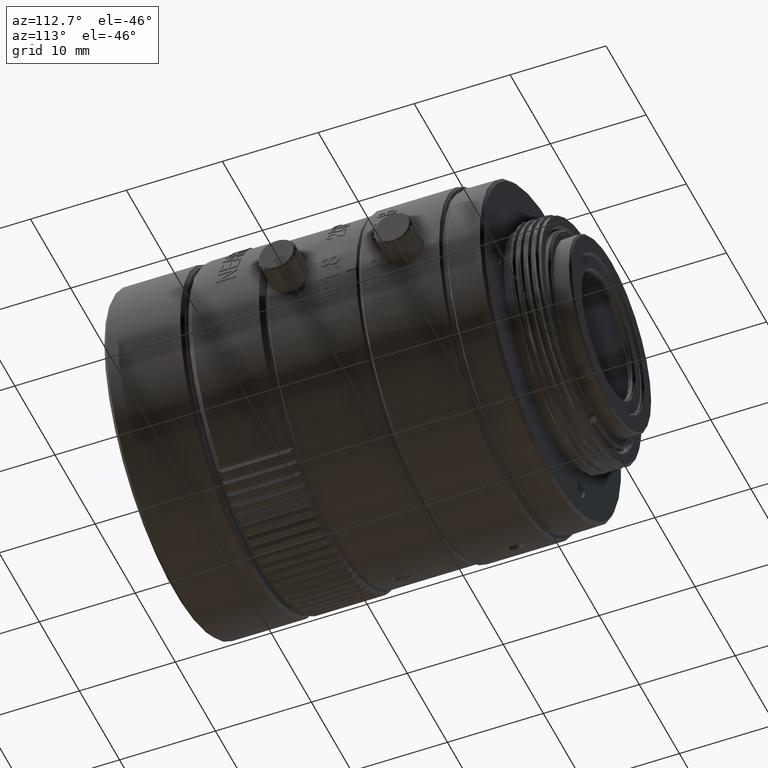
[diagram: clean part render]
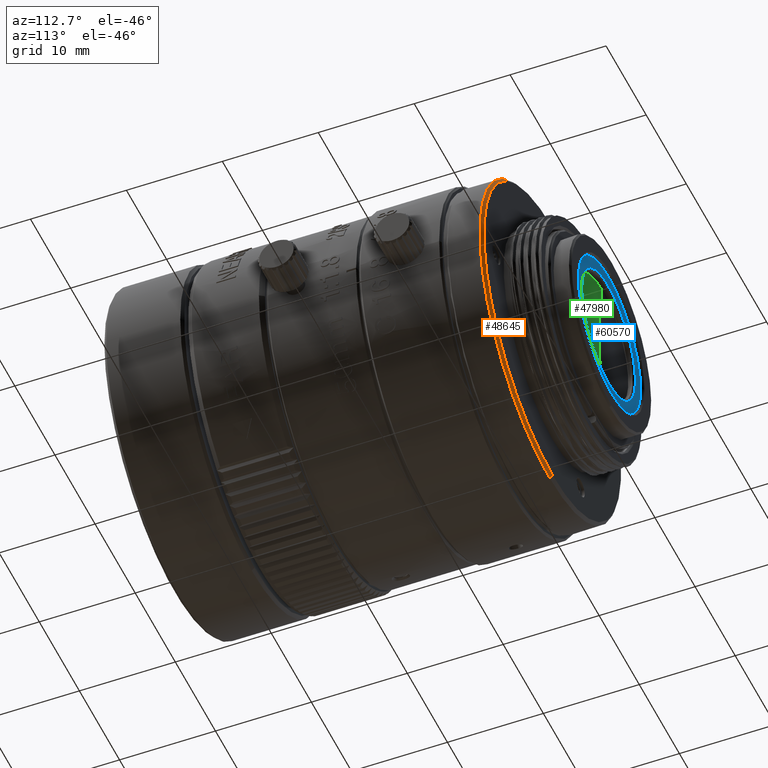
[diagram: same view with three faces highlighted in distinct colors, each labeled with its STEP entity id]
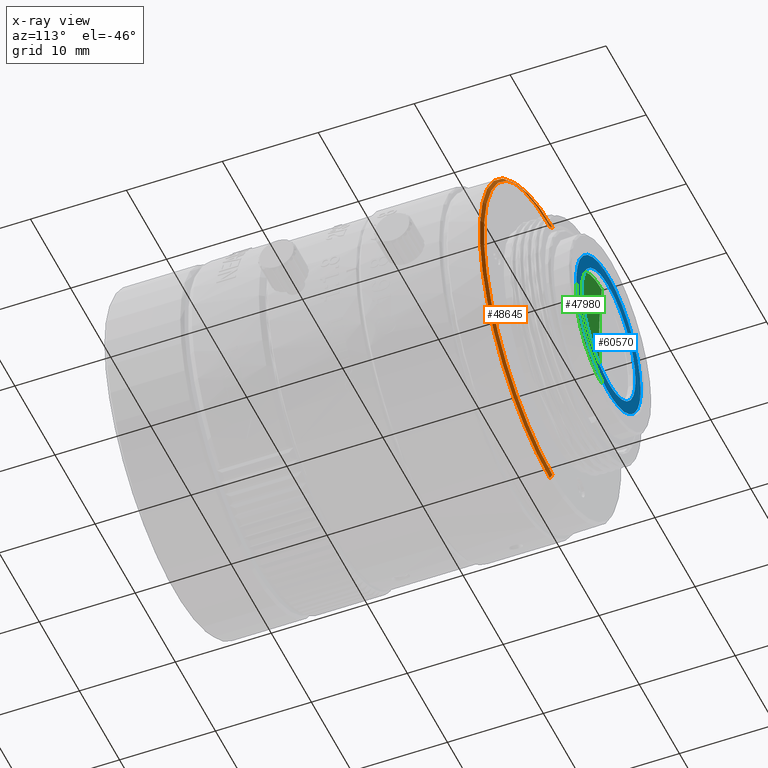
[diagram: x-ray of the same camera — body ghosted, the three highlighted faces saturated]
A machine part, auxiliary view with three faces highlighted in distinct colors.
The next image is the same camera in x-ray (body ghosted, the three faces saturated) — at least one of them is partly hidden behind the body in this view.
Their STEP definitions:

[orange] entity #48645 — the highlighted conical surface has half-angle 45 deg.
#5202 = CIRCLE ( 'NONE', #62166, 17.09999737999697800 ) ;
#12732 = CARTESIAN_POINT ( 'NONE',  ( 17.50001204309999991, 22.16401061507275827, -17.50001170252000193 ) ) ;
#18905 = DIRECTION ( 'NONE',  ( -0.000000000000000000, 1.000000000000000000, -0.000000000000000000 ) ) ;
#23302 = ORIENTED_EDGE ( 'NONE', *, *, #41626, .F. ) ;
#24326 = CONICAL_SURFACE ( 'NONE', #68754, 17.39999866686051178, 0.7853980867749428274 ) ;
#26413 = EDGE_CURVE ( 'NONE', #57573, #60284, #62472, .T. ) ;
#28420 = FACE_OUTER_BOUND ( 'NONE', #45892, .T. ) ;
#29965 = DIRECTION ( 'NONE',  ( 0.000000000000000000, 0.000000000000000000, -1.000000000000000000 ) ) ;
#30177 = DIRECTION ( 'NONE',  ( 0.000000000000000000, 0.000000000000000000, -1.000000000000000000 ) ) ;
#31244 = CARTESIAN_POINT ( 'NONE',  ( 17.50001204309999991, 22.46401194790999867, -17.50001170252000193 ) ) ;
#35367 = CARTESIAN_POINT ( 'NONE',  ( 17.50001204309999991, 22.16401061507275827, -34.90001036938051726 ) ) ;
#37747 = VECTOR ( 'NONE', #65630, 1000.000000000000000 ) ;
#38350 = ORIENTED_EDGE ( 'NONE', *, *, #26413, .F. ) ;
#38506 = ORIENTED_EDGE ( 'NONE', *, *, #69877, .T. ) ;
#39837 = CARTESIAN_POINT ( 'NONE',  ( 17.50001204309999991, 22.16401061507276182, -0.1000130356594991499 ) ) ;
#40191 = DIRECTION ( 'NONE',  ( 0.000000000000000000, 0.000000000000000000, -1.000000000000000000 ) ) ;
#40651 = CARTESIAN_POINT ( 'NONE',  ( 17.50001204309999991, 22.16401061507276182, -17.50001170252000193 ) ) ;
#40696 = VECTOR ( 'NONE', #46412, 1000.000000000000000 ) ;
#41626 = EDGE_CURVE ( 'NONE', #50954, #57573, #5202, .T. ) ;
#42293 = DIRECTION ( 'NONE',  ( -0.000000000000000000, 1.000000000000000000, -0.000000000000000000 ) ) ;
#42597 = CARTESIAN_POINT ( 'NONE',  ( 17.50001204310000347, 22.46401194790999867, -0.4000143225230262667 ) ) ;
#44717 = CIRCLE ( 'NONE', #62951, 17.39999866686050467 ) ;
#45892 = EDGE_LOOP ( 'NONE', ( #23302, #38506, #66600, #38350 ) ) ;
#46412 = DIRECTION ( 'NONE',  ( 0.000000000000000000, -0.7071068353668387152, -0.7071067270062522114 ) ) ;
#47853 = LINE ( 'NONE', #48536, #37747 ) ;
#48536 = CARTESIAN_POINT ( 'NONE',  ( 17.50001204310000347, 22.16401061507275827, -0.1000130356594922110 ) ) ;
#48645 = ADVANCED_FACE ( 'NONE', ( #28420 ), #24326, .T. ) ;
#50954 = VERTEX_POINT ( 'NONE', #42597 ) ;
#57573 = VERTEX_POINT ( 'NONE', #57687 ) ;
#57687 = CARTESIAN_POINT ( 'NONE',  ( 17.50001204309999991, 22.46401194790999867, -34.60000908251698348 ) ) ;
#60284 = VERTEX_POINT ( 'NONE', #68263 ) ;
#61212 = DIRECTION ( 'NONE',  ( 0.000000000000000000, -1.000000000000000000, 0.000000000000000000 ) ) ;
#62166 = AXIS2_PLACEMENT_3D ( 'NONE', #31244, #42293, #30177 ) ;
#62472 = LINE ( 'NONE', #35367, #40696 ) ;
#62825 = VERTEX_POINT ( 'NONE', #39837 ) ;
#62951 = AXIS2_PLACEMENT_3D ( 'NONE', #40651, #18905, #29965 ) ;
#65630 = DIRECTION ( 'NONE',  ( 8.659559898837680077E-17, -0.7071068353668387152, 0.7071067270062522114 ) ) ;
#66600 = ORIENTED_EDGE ( 'NONE', *, *, #70063, .T. ) ;
#68263 = CARTESIAN_POINT ( 'NONE',  ( 17.50001204310000347, 22.16401061507276182, -34.90001036938051016 ) ) ;
#68754 = AXIS2_PLACEMENT_3D ( 'NONE', #12732, #61212, #40191 ) ;
#69877 = EDGE_CURVE ( 'NONE', #50954, #62825, #47853, .T. ) ;
#70063 = EDGE_CURVE ( 'NONE', #62825, #60284, #44717, .T. ) ;

[blue] entity #60570 — the highlighted planar face has unit normal (-0, 1, 0).
#190 = CARTESIAN_POINT ( 'NONE',  ( 9.500012043096996095, 28.29968554691893701, -17.50001170252000193 ) ) ;
#235 = CARTESIAN_POINT ( 'NONE',  ( 10.95135239076032008, 28.29968554691999927, -18.93265816278426072 ) ) ;
#258 = CARTESIAN_POINT ( 'NONE',  ( 23.71960537655916212, 28.29968554692000637, -19.99148072807137666 ) ) ;
#537 = CARTESIAN_POINT ( 'NONE',  ( 10.03800702501116504, 28.29968554692000637, -14.61565725176351194 ) ) ;
#605 = CARTESIAN_POINT ( 'NONE',  ( 18.01083008238495253, 28.29968554691999927, -24.18603371835057914 ) ) ;
#822 = FACE_BOUND ( 'NONE', #28932, .T. ) ;
#879 = CARTESIAN_POINT ( 'NONE',  ( 19.21066634323316791, 28.29968554692000282, -9.680730420689835469 ) ) ;
#925 = CARTESIAN_POINT ( 'NONE',  ( 11.13924025462781131, 28.29968554691999927, -19.60992578294462163 ) ) ;
#1236 = CARTESIAN_POINT ( 'NONE',  ( 20.38436649385637978, 28.29968554692000282, -10.03800668443118482 ) ) ;
#1274 = CARTESIAN_POINT ( 'NONE',  ( 22.10613542586107982, 28.29968554691999927, -24.04132299981192133 ) ) ;
#1305 = CARTESIAN_POINT ( 'NONE',  ( 24.16269865593596933, 28.29968554691999927, -18.31655430142930641 ) ) ;
#1591 = CARTESIAN_POINT ( 'NONE',  ( 24.15901251043411335, 28.29968554692000282, -13.06580345499675033 ) ) ;
#1624 = CARTESIAN_POINT ( 'NONE',  ( 14.76722136411491171, 28.29968554692000637, -25.01927854571010101 ) ) ;
#1937 = CARTESIAN_POINT ( 'NONE',  ( 21.47601267464541408, 28.29968554691999572, -10.55564790650373652 ) ) ;
#1975 = CARTESIAN_POINT ( 'NONE',  ( 20.66346007786472327, 28.29968554692000637, -24.84853497688941815 ) ) ;
#2150 = CARTESIAN_POINT ( 'NONE',  ( 25.50001204310300906, 28.29968554691893701, -17.50001170252000193 ) ) ;
#2337 = CARTESIAN_POINT ( 'NONE',  ( 24.96201706118817043, 28.29968554692000282, -20.38436615327690049 ) ) ;
#2686 = CARTESIAN_POINT ( 'NONE',  ( 16.46643932131522803, 28.29968554691999927, -25.43464566788433245 ) ) ;
#3024 = CARTESIAN_POINT ( 'NONE',  ( 9.677556174562282010, 28.29968554691999927, -19.17831380355629989 ) ) ;
#3373 = CARTESIAN_POINT ( 'NONE',  ( 12.23345587289686698, 28.29968554691999927, -23.54711149314919894 ) ) ;
#3413 = CARTESIAN_POINT ( 'NONE',  ( 21.35766165957640794, 28.29968554691999572, -12.02167591160080207 ) ) ;
#3656 = ORIENTED_EDGE ( 'NONE', *, *, #69375, .T. ) ;
#4181 = CARTESIAN_POINT ( 'NONE',  ( 11.92309273220705279, 28.29968554692000282, -13.78636654552031260 ) ) ;
#4484 = CARTESIAN_POINT ( 'NONE',  ( 18.10982056198350065, 28.29968554692000282, -9.516677970906588513 ) ) ;
#4540 = CARTESIAN_POINT ( 'NONE',  ( 10.79999206007965640, 28.29968554691999572, -17.70473774759142316 ) ) ;
#4837 = CARTESIAN_POINT ( 'NONE',  ( 12.72551978885402590, 28.29968554691999572, -11.07829347920637098 ) ) ;
#4884 = CARTESIAN_POINT ( 'NONE',  ( 16.06736558283775551, 28.29968554691999927, -10.95135205017923674 ) ) ;
#5175 = CARTESIAN_POINT ( 'NONE',  ( 9.905077295543984306, 28.29968554691999572, -14.98066990745505223 ) ) ;
#5226 = CARTESIAN_POINT ( 'NONE',  ( 10.91652091822596837, 28.29968554691999927, -16.25569540523510526 ) ) ;
#5523 = CARTESIAN_POINT ( 'NONE',  ( 13.06580379557859573, 28.29968554691999216, -10.84101123518504828 ) ) ;
#5571 = CARTESIAN_POINT ( 'NONE',  ( 10.88126484887260403, 28.29968554691999927, -18.54254603301050963 ) ) ;
#5874 = CARTESIAN_POINT ( 'NONE',  ( 14.52512125341521276, 28.29968554691999572, -10.07363696847337131 ) ) ;
#5923 = CARTESIAN_POINT ( 'NONE',  ( 14.02305559682625002, 28.29968554691999927, -23.23169989421939619 ) ) ;
#5945 = CARTESIAN_POINT ( 'NONE',  ( 24.01005826085918926, 28.29968554691999216, -19.09074934003902868 ) ) ;
#6216 = CARTESIAN_POINT ( 'NONE',  ( 20.41336885927152878, 28.29968554691999572, -10.04927632396084114 ) ) ;
#6260 = CARTESIAN_POINT ( 'NONE',  ( 11.35368796694591609, 28.29968554692000993, -20.17660814945352499 ) ) ;
#6284 = CARTESIAN_POINT ( 'NONE',  ( 19.76316482395663243, 28.29968554692000282, -23.80646101794142311 ) ) ;
#6566 = CARTESIAN_POINT ( 'NONE',  ( 24.54751427961886989, 28.29968554691999927, -13.69716026234384643 ) ) ;
#6600 = CARTESIAN_POINT ( 'NONE',  ( 16.16475634488175572, 28.29968554691999927, -25.38785211723485702 ) ) ;
#6613 = CARTESIAN_POINT ( 'NONE',  ( 16.68364481227958152, 28.29968554691999216, -24.16273078195981938 ) ) ;
#6634 = CARTESIAN_POINT ( 'NONE',  ( 24.14527518977470066, 28.29968554691999927, -16.63443171094523620 ) ) ;
#6922 = CARTESIAN_POINT ( 'NONE',  ( 20.32380449457051341, 28.29968554692000282, -10.01487513166413201 ) ) ;
#6956 = CARTESIAN_POINT ( 'NONE',  ( 22.96174352202623936, 28.29968554691999927, -23.35201499166199213 ) ) ;
#7311 = CARTESIAN_POINT ( 'NONE',  ( 24.95074742165864023, 28.29968554691999927, -20.41336851869223423 ) ) ;
#7325 = CARTESIAN_POINT ( 'NONE',  ( 13.78636688609893213, 28.29968554692000637, -23.07693101341221009 ) ) ;
#7346 = CARTESIAN_POINT ( 'NONE',  ( 23.07693135399198781, 28.29968554691999927, -21.21365685952148183 ) ) ;
#7602 = CARTESIAN_POINT ( 'NONE',  ( 17.50001204309999991, 28.29968554695795291, -10.80000792488171335 ) ) ;
#7661 = CARTESIAN_POINT ( 'NONE',  ( 21.65156918842615141, 28.29968554691999927, -24.34383028193771636 ) ) ;
#7699 = CARTESIAN_POINT ( 'NONE',  ( 23.31593718593061482, 28.29968554692000993, -14.17014260796332614 ) ) ;
#8019 = CARTESIAN_POINT ( 'NONE',  ( 21.30286348328533919, 28.29968554691999927, -24.54751393903102752 ) ) ;
#8051 = CARTESIAN_POINT ( 'NONE',  ( 20.68494632917168730, 28.29968554691999927, -11.59774817703377359 ) ) ;
#8370 = CARTESIAN_POINT ( 'NONE',  ( 9.841145124867820115, 28.29968554691999927, -19.83677413723408733 ) ) ;
#8710 = CARTESIAN_POINT ( 'NONE',  ( 13.52401141155832498, 28.29968554691999927, -24.44437549853946834 ) ) ;
#9015 = EDGE_CURVE ( 'NONE', #18322, #63334, #14129, .T. ) ;
#9105 = CARTESIAN_POINT ( 'NONE',  ( 23.75041243599541474, 28.29968554691999216, -15.08636588349962437 ) ) ;
#9825 = CARTESIAN_POINT ( 'NONE',  ( 17.74449516679787564, 28.29968554692000282, -9.499995494977659050 ) ) ;
#9876 = CARTESIAN_POINT ( 'NONE',  ( 11.34563036068012210, 28.29968554691999927, -14.85060305058599717 ) ) ;
#9976 = ORIENTED_EDGE ( 'NONE', *, *, #9015, .T. ) ;
#10178 = CARTESIAN_POINT ( 'NONE',  ( 9.597049589175695061, 28.29968554692000637, -16.25510198789509886 ) ) ;
#10227 = CARTESIAN_POINT ( 'NONE',  ( 14.82341559616272519, 28.29968554692000637, -11.35368762636770867 ) ) ;
#10574 = CARTESIAN_POINT ( 'NONE',  ( 16.30754556975634983, 28.29968554692000637, -10.90692576569956884 ) ) ;
#10880 = CARTESIAN_POINT ( 'NONE',  ( 14.33656400833362632, 28.29968554691998861, -10.15148842814974373 ) ) ;
#10925 = CARTESIAN_POINT ( 'NONE',  ( 10.89394075810427509, 28.29968554691998861, -18.61827575762995224 ) ) ;
#11229 = CARTESIAN_POINT ( 'NONE',  ( 12.89388866033160141, 28.29968554692000282, -10.95870040523502631 ) ) ;
#11274 = CARTESIAN_POINT ( 'NONE',  ( 13.64236242662445342, 28.29968554692000282, -22.97834749344036709 ) ) ;
#11297 = CARTESIAN_POINT ( 'NONE',  ( 18.36570702324246795, 28.29968554692000637, -24.14525357966675045 ) ) ;
#11626 = CARTESIAN_POINT ( 'NONE',  ( 15.90927440559611661, 28.29968554691999927, -24.01005792028554353 ) ) ;
#11649 = CARTESIAN_POINT ( 'NONE',  ( 21.91079208561831138, 28.29968554691998861, -22.56441533876040495 ) ) ;
#11844 = VERTEX_POINT ( 'NONE', #13336 ) ;
#11922 = CARTESIAN_POINT ( 'NONE',  ( 20.69597660219260149, 28.29968554691999927, -10.16113705447315496 ) ) ;
#11954 = CARTESIAN_POINT ( 'NONE',  ( 25.40297449702431010, 28.29968554691999927, -18.74492141715444049 ) ) ;
#11985 = CARTESIAN_POINT ( 'NONE',  ( 24.04867169544059280, 28.29968554691998861, -16.06736524225690133 ) ) ;
#12213 = PLANE ( 'NONE',  #16886 ) ;
#12317 = CARTESIAN_POINT ( 'NONE',  ( 16.22744823744982057, 28.29968554691999927, -24.07810699190621762 ) ) ;
#12626 = CARTESIAN_POINT ( 'NONE',  ( 19.58801041100958074, 28.29968554691999927, -9.769618737173029643 ) ) ;
#12661 = CARTESIAN_POINT ( 'NONE',  ( 25.37741084241217848, 28.29968554691999572, -18.89553484466343392 ) ) ;
#12693 = CARTESIAN_POINT ( 'NONE',  ( 23.65439372552284070, 28.29968554691999927, -20.14942035444854085 ) ) ;
#12935 = DIRECTION ( 'NONE',  ( 0.000000000000000000, -0.000000000000000000, 1.000000000000000000 ) ) ;
#12991 = CARTESIAN_POINT ( 'NONE',  ( 22.33967114562050327, 28.29968554691999572, -11.10603703957214350 ) ) ;
#13026 = CARTESIAN_POINT ( 'NONE',  ( 15.78935774298050099, 28.29968554692000282, -25.31929298435431974 ) ) ;
#13336 = CARTESIAN_POINT ( 'NONE',  ( 17.50001204309999636, 28.29968554695795291, -24.20001548015399706 ) ) ;
#13378 = CARTESIAN_POINT ( 'NONE',  ( 24.34019619333705009, 28.29968554691999572, -21.64932105405641138 ) ) ;
#13738 = CARTESIAN_POINT ( 'NONE',  ( 11.64800875395981627, 28.29968554692000282, -22.96174318144715443 ) ) ;
#14129 = B_SPLINE_CURVE_WITH_KNOTS ( 'NONE', 3,
 ( #190, #37621, #36920, #21927, #10178, #32629, #20883, #54375, #15556, #32287, #5175, #16581, #70395, #537, #37970, #32988, #54029, #42644, #43671, #26913, #15214, #65075, #27256, #60067, #38318, #4837, #11229, #48670, #5523, #49024, #16253, #54723, #10880, #59723, #53338, #5874, #59020, #47983, #64388, #37273, #27613, #31935, #22260, #64042, #58667, #9825, #4484, #53681, #26220, #26574, #48331, #70052, #879, #12626, #22616, #39723, #6922, #1236, #6216, #11922, #66476, #1937, #56130, #61473, #29378, #12991, #50782, #66825, #44369, #33336, #40085, #60771, #1591, #67184, #6566, #38673, #55775, #17632, #28316, #22968, #65766, #45426, #18334, #23312, #16934, #49722, #23672, #50435, #55078, #61839 ),
 .UNSPECIFIED., .F., .F.,
 ( 4, 1, 1, 1, 2, 2, 1, 1, 1, 2, 2, 1, 1, 2, 2, 2, 1, 1, 2, 2, 1, 1, 1, 2, 2, 1, 1, 1, 2, 2, 2, 1, 1, 1, 2, 2, 1, 1, 1, 2, 2, 1, 1, 2, 2, 2, 1, 1, 2, 2, 1, 1, 1, 2, 2, 1, 1, 1, 2, 2, 4 ),
 ( 0.000000000000000000, 0.03125000000000442701, 0.04687500000000641848, 0.05468750000000742462, 0.05859375000000771605, 0.06250000000000800748, 0.09375000000000757727, 0.1093750000000073552, 0.1171875000000071471, 0.1210937500000070777, 0.1250000000000069944, 0.1562500000000071887, 0.1718750000000073552, 0.1796875000000075218, 0.1875000000000076883, 0.2500000000000087708, 0.2812500000000092704, 0.2968750000000094924, 0.3046875000000096589, 0.3125000000000097700, 0.3437500000000098255, 0.3593750000000097145, 0.3671875000000097145, 0.3710937500000096034, 0.3750000000000094924, 0.4062500000000088818, 0.4218750000000086042, 0.4296875000000083267, 0.4335937500000081601, 0.4375000000000079381, 0.5000000000000111022, 0.5312500000000124345, 0.5468750000000128786, 0.5546875000000131006, 0.5585937500000129896, 0.5625000000000128786, 0.5937500000000093259, 0.6093750000000073275, 0.6171875000000065503, 0.6210937500000063283, 0.6250000000000059952, 0.6562500000000064393, 0.6718750000000066613, 0.6796875000000066613, 0.6875000000000066613, 0.7500000000000045519, 0.7812500000000034417, 0.7968750000000026645, 0.8046875000000023315, 0.8125000000000019984, 0.8437500000000006661, 0.8593749999999998890, 0.8671874999999995559, 0.8710937499999994449, 0.8749999999999992228, 0.9062499999999990008, 0.9218749999999987788, 0.9296874999999986677, 0.9335937499999987788, 0.9374999999999988898, 1.000000000000000000 ),
 .UNSPECIFIED. ) ;
#14428 = CARTESIAN_POINT ( 'NONE',  ( 9.500012043096996095, 28.29968554691893701, -17.50001170252000193 ) ) ;
#15156 = CARTESIAN_POINT ( 'NONE',  ( 9.500012043096994319, 28.29968554691999216, -17.98950872213764640 ) ) ;
#15214 = CARTESIAN_POINT ( 'NONE',  ( 10.76629927499777573, 28.29968554691999572, -13.18008130986683568 ) ) ;
#15260 = CARTESIAN_POINT ( 'NONE',  ( 10.94870760415373212, 28.29968554691999572, -16.09441197999275275 ) ) ;
#15397 = EDGE_CURVE ( 'NONE', #57109, #11844, #39911, .T. ) ;
#15556 = CARTESIAN_POINT ( 'NONE',  ( 9.680730761269764173, 28.29968554691999572, -15.78935740238632945 ) ) ;
#15608 = CARTESIAN_POINT ( 'NONE',  ( 12.59897490661502850, 28.29968554691999572, -12.92578636289852057 ) ) ;
#15957 = CARTESIAN_POINT ( 'NONE',  ( 10.93244396629851600, 28.29968554692000282, -16.17417744430389348 ) ) ;
#16253 = CARTESIAN_POINT ( 'NONE',  ( 13.69716060291087878, 28.29968554691999927, -10.45250946600706321 ) ) ;
#16301 = CARTESIAN_POINT ( 'NONE',  ( 15.75136024080292252, 28.29968554691999927, -11.02579014234597210 ) ) ;
#16581 = CARTESIAN_POINT ( 'NONE',  ( 9.980745199913034327, 28.29968554691999572, -14.76722102352406196 ) ) ;
#16886 = AXIS2_PLACEMENT_3D ( 'NONE', #50726, #62132, #12935 ) ;
#16934 = CARTESIAN_POINT ( 'NONE',  ( 25.34188429744443738, 28.29968554692000282, -15.91694195238643772 ) ) ;
#16981 = CARTESIAN_POINT ( 'NONE',  ( 11.86052901381339986, 28.29968554692000282, -21.11796110936641213 ) ) ;
#17004 = CARTESIAN_POINT ( 'NONE',  ( 17.70482569850878463, 28.29968554692000637, -24.20001548018505488 ) ) ;
#17324 = CARTESIAN_POINT ( 'NONE',  ( 24.98514861395464592, 28.29968554691999216, -20.32380415399149598 ) ) ;
#17360 = CARTESIAN_POINT ( 'NONE',  ( 24.05131648204570638, 28.29968554691999216, -18.90561142504671110 ) ) ;
#17632 = CARTESIAN_POINT ( 'NONE',  ( 24.88757936844733010, 28.29968554691999216, -14.42999047006238378 ) ) ;
#17669 = CARTESIAN_POINT ( 'NONE',  ( 14.61565759234694006, 28.29968554692001703, -24.96201672060983512 ) ) ;
#17680 = CARTESIAN_POINT ( 'NONE',  ( 11.19356272767874749, 28.29968554691998861, -19.76316448337240672 ) ) ;
#17700 = CARTESIAN_POINT ( 'NONE',  ( 18.66875983292890240, 28.29968554691998861, -24.09733691671322475 ) ) ;
#18009 = CARTESIAN_POINT ( 'NONE',  ( 22.65550441629857659, 28.29968554691999927, -23.62826550142978022 ) ) ;
#18024 = CARTESIAN_POINT ( 'NONE',  ( 14.66976276515255861, 28.29968554692000282, -23.57477196855859347 ) ) ;
#18322 = VERTEX_POINT ( 'NONE', #46736 ) ;
#18334 = CARTESIAN_POINT ( 'NONE',  ( 25.27320954719380453, 28.29968554691999927, -15.60066737168665796 ) ) ;
#18371 = CARTESIAN_POINT ( 'NONE',  ( 17.98897829047058394, 28.29968554691999216, -25.49997928744273068 ) ) ;
#18385 = CARTESIAN_POINT ( 'NONE',  ( 16.09441232058212279, 28.29968554691999572, -24.05131614146941388 ) ) ;
#18405 = CARTESIAN_POINT ( 'NONE',  ( 20.33026132105936412, 28.29968554691999927, -11.42525143648828134 ) ) ;
#18728 = CARTESIAN_POINT ( 'NONE',  ( 20.47490283278408185, 28.29968554691999927, -24.92638643656669117 ) ) ;
#18798 = ORIENTED_EDGE ( 'NONE', *, *, #15397, .T. ) ;
#18879 = B_SPLINE_CURVE_WITH_KNOTS ( 'NONE', 3,
 ( #44796, #17004, #605, #11297, #39437, #55841, #17700, #61183, #50149, #34106, #28751, #6284, #66547, #38382, #39093, #49790, #44437, #33056, #22328, #50505, #39797, #11649, #23384, #56201, #22686, #45139, #66893, #7346, #33404, #61541, #66190, #12693, #65481, #29099, #258, #44077, #54790, #5945, #17360, #55139, #43737, #21995, #1305, #27679, #60135, #65830, #6634, #38739, #60839, #60489, #28026, #11985, #33748, #55486, #28386, #23038, #9105, #30158, #24792, #7699, #46898, #24098, #19465, #41551, #51907, #68644, #52255, #62256, #3413, #19111, #35837, #62957, #8051, #18405, #29454, #46551, #41207, #23739, #40507, #68304, #40856, #19804, #29809, #57594, #45500, #63293, #30502, #51216 ),
 .UNSPECIFIED., .F., .F.,
 ( 4, 1, 1, 1, 2, 2, 1, 1, 2, 2, 1, 1, 2, 2, 2, 1, 1, 2, 2, 1, 1, 1, 2, 2, 1, 1, 1, 2, 2, 2, 1, 1, 1, 2, 2, 1, 1, 2, 2, 1, 1, 2, 2, 2, 1, 1, 2, 2, 1, 1, 1, 2, 2, 1, 1, 1, 2, 2, 4 ),
 ( 0.000000000000000000, 0.03125000000000051348, 0.04687500000000103390, 0.05468750000000156125, 0.05859375000000177636, 0.06250000000000199840, 0.09375000000000414946, 0.1093750000000054678, 0.1171875000000062034, 0.1250000000000069389, 0.1562500000000102418, 0.1718750000000119904, 0.1796875000000126565, 0.1875000000000133504, 0.2500000000000174305, 0.2812500000000193179, 0.2968750000000205946, 0.3046875000000212053, 0.3125000000000218714, 0.3437500000000259792, 0.3593750000000281442, 0.3671875000000292544, 0.3710937500000298650, 0.3750000000000304756, 0.4062500000000360267, 0.4218750000000385803, 0.4296875000000395795, 0.4335937500000398570, 0.4375000000000401901, 0.5000000000000368594, 0.5312500000000353051, 0.5468750000000347500, 0.5546875000000344169, 0.5585937500000343059, 0.5625000000000340838, 0.5937500000000310862, 0.6093750000000295319, 0.6171875000000288658, 0.6250000000000283107, 0.6562500000000257572, 0.6718750000000246470, 0.6796875000000243139, 0.6875000000000238698, 0.7500000000000202061, 0.7812500000000182077, 0.7968750000000168754, 0.8046875000000159872, 0.8125000000000150990, 0.8437500000000104361, 0.8593750000000079936, 0.8671875000000069944, 0.8710937500000067724, 0.8750000000000064393, 0.9062500000000066613, 0.9218750000000065503, 0.9296875000000065503, 0.9335937500000062172, 0.9375000000000059952, 1.000000000000000000 ),
 .UNSPECIFIED. ) ;
#19111 = CARTESIAN_POINT ( 'NONE',  ( 21.26270113764950409, 28.29968554691999927, -11.95604586348650145 ) ) ;
#19431 = CARTESIAN_POINT ( 'NONE',  ( 13.18008165044800428, 28.29968554692000282, -24.23372447062306279 ) ) ;
#19465 = CARTESIAN_POINT ( 'NONE',  ( 23.13949507238648451, 28.29968554692000282, -13.88206229567356864 ) ) ;
#19770 = CARTESIAN_POINT ( 'NONE',  ( 9.966252238954464104, 28.29968554692000282, -20.20370447351197640 ) ) ;
#19804 = CARTESIAN_POINT ( 'NONE',  ( 18.90561176562994206, 28.29968554691999927, -10.94870726357417112 ) ) ;
#20883 = CARTESIAN_POINT ( 'NONE',  ( 9.622613243787823123, 28.29968554692000282, -16.10448856037958620 ) ) ;
#20929 = CARTESIAN_POINT ( 'NONE',  ( 15.39009796267802521, 28.29968554692000282, -11.13923991404639224 ) ) ;
#21274 = CARTESIAN_POINT ( 'NONE',  ( 14.17014294853880330, 28.29968554692000637, -11.68408655969095911 ) ) ;
#21927 = CARTESIAN_POINT ( 'NONE',  ( 9.565399350132107514, 28.29968554692000637, -16.46632398489403215 ) ) ;
#21970 = CARTESIAN_POINT ( 'NONE',  ( 16.63431706295479273, 28.29968554692000637, -10.85476982537326407 ) ) ;
#21995 = CARTESIAN_POINT ( 'NONE',  ( 24.08350316797394797, 28.29968554692000282, -18.74432799980480624 ) ) ;
#22260 = CARTESIAN_POINT ( 'NONE',  ( 16.01425779642189795, 28.29968554692000637, -9.639131603510808333 ) ) ;
#22308 = CARTESIAN_POINT ( 'NONE',  ( 12.92578670347506353, 28.29968554691999927, -22.40104883900337995 ) ) ;
#22328 = CARTESIAN_POINT ( 'NONE',  ( 21.07116440396194434, 28.29968554691999927, -23.16923676098619111 ) ) ;
#22616 = CARTESIAN_POINT ( 'NONE',  ( 20.01935383816429592, 28.29968554692000282, -9.905076954964073366 ) ) ;
#22686 = CARTESIAN_POINT ( 'NONE',  ( 22.87817996175687085, 28.29968554691999927, -21.49868094411647235 ) ) ;
#22968 = CARTESIAN_POINT ( 'NONE',  ( 24.92638677714626994, 28.29968554692000637, -14.52512091283414186 ) ) ;
#23005 = CARTESIAN_POINT ( 'NONE',  ( 25.31929332492749651, 28.29968554691999927, -19.21066600265531576 ) ) ;
#23016 = CARTESIAN_POINT ( 'NONE',  ( 13.50134280150157551, 28.29968554691999927, -22.87817962117540915 ) ) ;
#23038 = CARTESIAN_POINT ( 'NONE',  ( 23.76897945597163897, 28.29968554692000282, -15.13505267476000604 ) ) ;
#23312 = CARTESIAN_POINT ( 'NONE',  ( 25.32246791164117283, 28.29968554692000282, -15.82170960149452021 ) ) ;
#23350 = CARTESIAN_POINT ( 'NONE',  ( 24.67152008096878291, 28.29968554691999216, -21.06349646737335135 ) ) ;
#23384 = CARTESIAN_POINT ( 'NONE',  ( 22.40104917958449349, 28.29968554692000637, -22.07423704214346216 ) ) ;
#23672 = CARTESIAN_POINT ( 'NONE',  ( 25.36089011324108355, 28.29968554692001348, -16.01424649614312301 ) ) ;
#23704 = CARTESIAN_POINT ( 'NONE',  ( 23.89398670604525421, 28.29968554692000637, -22.33967080504311653 ) ) ;
#23739 = CARTESIAN_POINT ( 'NONE',  ( 19.99148106865084529, 28.29968554692000637, -11.28041836906085571 ) ) ;
#24064 = CARTESIAN_POINT ( 'NONE',  ( 15.41201367521435195, 28.29968554691999927, -25.23040466787422886 ) ) ;
#24098 = CARTESIAN_POINT ( 'NONE',  ( 23.16923710156966720, 28.29968554692000282, -13.92885934166470108 ) ) ;
#24412 = CARTESIAN_POINT ( 'NONE',  ( 16.25516940938245014, 28.29968554691998861, -25.40298656534221777 ) ) ;
#24792 = CARTESIAN_POINT ( 'NONE',  ( 23.50617632389663925, 28.29968554691999927, -14.51563594505650912 ) ) ;
#25106 = CARTESIAN_POINT ( 'NONE',  ( 10.15148876872951433, 28.29968554692000282, -20.66345973728448016 ) ) ;
#25459 = CARTESIAN_POINT ( 'NONE',  ( 10.11244471775409082, 28.29968554691999216, -20.57003293497989560 ) ) ;
#25907 = CARTESIAN_POINT ( 'NONE',  ( 11.59774851760982628, 28.29968554692000637, -14.31507741645451404 ) ) ;
#26167 = CARTESIAN_POINT ( 'NONE',  ( 10.88034478397256066, 28.29968554692000993, -21.99275959180957329 ) ) ;
#26220 = CARTESIAN_POINT ( 'NONE',  ( 18.74485467682717754, 28.29968554691999216, -9.597036839698386501 ) ) ;
#26271 = CARTESIAN_POINT ( 'NONE',  ( 10.81396166789763669, 28.29968554692000282, -18.01067642371459598 ) ) ;
#26574 = CARTESIAN_POINT ( 'NONE',  ( 18.83526774132404213, 28.29968554691999927, -9.612171287805516329 ) ) ;
#26913 = CARTESIAN_POINT ( 'NONE',  ( 10.73079923751402553, 28.29968554692000282, -13.23593738082418803 ) ) ;
#27256 = CARTESIAN_POINT ( 'NONE',  ( 11.45291225248632117, 28.29968554691999927, -12.23345553230402238 ) ) ;
#27613 = CARTESIAN_POINT ( 'NONE',  ( 15.91694229296246021, 28.29968554691999927, -9.658139448176937591 ) ) ;
#27679 = CARTESIAN_POINT ( 'NONE',  ( 24.19998341005576847, 28.29968554692000282, -17.90946379266297228 ) ) ;
#28026 = CARTESIAN_POINT ( 'NONE',  ( 24.09309797992046143, 28.29968554692000637, -16.30754522917645843 ) ) ;
#28316 = CARTESIAN_POINT ( 'NONE',  ( 24.91323169248431313, 28.29968554692000637, -14.49247342956655871 ) ) ;
#28386 = CARTESIAN_POINT ( 'NONE',  ( 23.80646135852201795, 28.29968554691999927, -15.23685892166856348 ) ) ;
#28716 = CARTESIAN_POINT ( 'NONE',  ( 16.07617635890501973, 28.29968554692000637, -25.37234985804320786 ) ) ;
#28728 = CARTESIAN_POINT ( 'NONE',  ( 13.18224511391652953, 28.29968554691999927, -22.63239498523047288 ) ) ;
#28751 = CARTESIAN_POINT ( 'NONE',  ( 19.60992612353118503, 28.29968554691999927, -23.86078349099245344 ) ) ;
#28932 = EDGE_LOOP ( 'NONE', ( #18798, #49708 ) ) ;
#28970 = FACE_OUTER_BOUND ( 'NONE', #47841, .T. ) ;
#29065 = CARTESIAN_POINT ( 'NONE',  ( 24.23372481120253497, 28.29968554691999572, -21.81994209517274896 ) ) ;
#29099 = CARTESIAN_POINT ( 'NONE',  ( 23.70858382731785241, 28.29968554692000282, -20.01883257221341594 ) ) ;
#29378 = CARTESIAN_POINT ( 'NONE',  ( 21.81994243575306669, 28.29968554691999927, -10.76629893441778840 ) ) ;
#29419 = CARTESIAN_POINT ( 'NONE',  ( 18.98576628977799530, 28.29968554691999927, -25.36089180152930567 ) ) ;
#29454 = CARTESIAN_POINT ( 'NONE',  ( 20.14942069503670652, 28.29968554692000637, -11.34563002010185073 ) ) ;
#29770 = CARTESIAN_POINT ( 'NONE',  ( 20.50755031605472212, 28.29968554691999572, -24.91323135190322446 ) ) ;
#29809 = CARTESIAN_POINT ( 'NONE',  ( 18.82584630131772840, 28.29968554692000282, -10.93244362571878092 ) ) ;
#30158 = CARTESIAN_POINT ( 'NONE',  ( 23.64633611925347623, 28.29968554691999572, -14.82341525558616091 ) ) ;
#30465 = CARTESIAN_POINT ( 'NONE',  ( 13.35070269156118350, 28.29968554692000282, -24.34019585275559905 ) ) ;
#30502 = CARTESIAN_POINT ( 'NONE',  ( 17.90999489441937342, 28.29968554692000993, -10.80000792485496497 ) ) ;
#30821 = CARTESIAN_POINT ( 'NONE',  ( 10.08679239371644698, 28.29968554691999216, -20.50754997547464242 ) ) ;
#31188 = CARTESIAN_POINT ( 'NONE',  ( 10.45250980658653361, 28.29968554691999572, -21.30286314270477988 ) ) ;
#31292 = CARTESIAN_POINT ( 'NONE',  ( 14.02498491661291524, 28.29968554691999216, -11.77134319954363839 ) ) ;
#31637 = CARTESIAN_POINT ( 'NONE',  ( 11.29144025888307290, 28.29968554691999927, -14.98119083282486486 ) ) ;
#31935 = CARTESIAN_POINT ( 'NONE',  ( 15.98054163060085031, 28.29968554692000282, -9.645571711377893820 ) ) ;
#32287 = CARTESIAN_POINT ( 'NONE',  ( 9.769619077752915715, 28.29968554691999927, -15.41201333460956135 ) ) ;
#32331 = CARTESIAN_POINT ( 'NONE',  ( 10.85474889642442697, 28.29968554692000993, -18.36559169409468950 ) ) ;
#32629 = CARTESIAN_POINT ( 'NONE',  ( 9.612179099048178799, 28.29968554691999927, -16.16471561885752450 ) ) ;
#32680 = CARTESIAN_POINT ( 'NONE',  ( 10.90692610627942827, 28.29968554691999216, -18.69247817586340332 ) ) ;
#32988 = CARTESIAN_POINT ( 'NONE',  ( 10.16113739505432001, 28.29968554691999572, -14.30404714342514794 ) ) ;
#33036 = CARTESIAN_POINT ( 'NONE',  ( 16.17417778488953672, 28.29968554692000282, -24.06757977932338122 ) ) ;
#33056 = CARTESIAN_POINT ( 'NONE',  ( 20.97503916959615111, 28.29968554691999927, -23.22868020549111989 ) ) ;
#33336 = CARTESIAN_POINT ( 'NONE',  ( 23.92173026642037215, 28.29968554692000993, -12.72551944828135184 ) ) ;
#33404 = CARTESIAN_POINT ( 'NONE',  ( 23.23170023480028590, 28.29968554691999216, -20.97696814879216021 ) ) ;
#33709 = CARTESIAN_POINT ( 'NONE',  ( 20.87937249123580941, 28.29968554691999927, -24.75347323684662015 ) ) ;
#33723 = CARTESIAN_POINT ( 'NONE',  ( 12.14501849390999411, 28.29968554692000282, -21.55318318144915679 ) ) ;
#33748 = CARTESIAN_POINT ( 'NONE',  ( 23.97423360327371711, 28.29968554691999927, -15.75135990022141819 ) ) ;
#34070 = CARTESIAN_POINT ( 'NONE',  ( 25.37235019862405494, 28.29968554691999572, -18.92384738671301037 ) ) ;
#34106 = CARTESIAN_POINT ( 'NONE',  ( 19.24866384540934661, 28.29968554692000282, -23.97423326269248633 ) ) ;
#34424 = CARTESIAN_POINT ( 'NONE',  ( 25.09494679065242551, 28.29968554691999572, -20.01935349758711169 ) ) ;
#34774 = CARTESIAN_POINT ( 'NONE',  ( 16.89020352423851890, 28.29968554691999572, -25.48334543413481867 ) ) ;
#35118 = CARTESIAN_POINT ( 'NONE',  ( 22.27450429733459103, 28.29968554691999572, -23.92172992584444202 ) ) ;
#35400 = EDGE_CURVE ( 'NONE', #11844, #57109, #18879, .T. ) ;
#35468 = CARTESIAN_POINT ( 'NONE',  ( 9.639133972958930485, 28.29968554692000282, -18.98577690889567648 ) ) ;
#35837 = CARTESIAN_POINT ( 'NONE',  ( 21.21365720009879396, 28.29968554691999216, -11.92309239162648637 ) ) ;
#36920 = CARTESIAN_POINT ( 'NONE',  ( 9.516706674680431632, 28.29968554691999927, -16.89004985587027363 ) ) ;
#36969 = CARTESIAN_POINT ( 'NONE',  ( 10.92191675371477011, 28.29968554691999216, -16.22744789686685962 ) ) ;
#37273 = CARTESIAN_POINT ( 'NONE',  ( 15.82170994206792258, 28.29968554692000637, -9.677555833981116962 ) ) ;
#37323 = CARTESIAN_POINT ( 'NONE',  ( 12.02167625217829183, 28.29968554691999927, -13.64236208604737399 ) ) ;
#37621 = CARTESIAN_POINT ( 'NONE',  ( 9.500012043096994319, 28.29968554692000637, -17.25544096295570995 ) ) ;
#37970 = CARTESIAN_POINT ( 'NONE',  ( 10.04927666454069524, 28.29968554691999927, -14.58665488634876084 ) ) ;
#38019 = CARTESIAN_POINT ( 'NONE',  ( 12.12184412444250370, 28.29968554692000282, -13.50134246092611789 ) ) ;
#38318 = CARTESIAN_POINT ( 'NONE',  ( 12.34451966988623894, 28.29968554692000282, -11.37175790362464234 ) ) ;
#38361 = CARTESIAN_POINT ( 'NONE',  ( 16.38170760509920854, 28.29968554692000282, -10.89394788718024643 ) ) ;
#38382 = CARTESIAN_POINT ( 'NONE',  ( 19.91365786211682476, 28.29968554691999572, -23.75041209541728193 ) ) ;
#38673 = CARTESIAN_POINT ( 'NONE',  ( 24.75347357743249788, 28.29968554692000282, -14.12065125439109359 ) ) ;
#38720 = CARTESIAN_POINT ( 'NONE',  ( 14.31507775704421093, 28.29968554692000282, -23.40227522801538029 ) ) ;
#38739 = CARTESIAN_POINT ( 'NONE',  ( 24.11875923732687355, 28.29968554691999572, -16.45747737202945160 ) ) ;
#39056 = CARTESIAN_POINT ( 'NONE',  ( 24.83888669115102132, 28.29968554692000282, -20.69597626160689785 ) ) ;
#39072 = CARTESIAN_POINT ( 'NONE',  ( 16.25568478530964711, 28.29968554692000282, -24.08350079823121348 ) ) ;
#39093 = CARTESIAN_POINT ( 'NONE',  ( 20.17660849004802870, 28.29968554692000637, -23.64633577866608860 ) ) ;
#39402 = CARTESIAN_POINT ( 'NONE',  ( 14.58665522692811756, 28.29968554692000993, -24.95074708107885897 ) ) ;
#39437 = CARTESIAN_POINT ( 'NONE',  ( 18.54261345025504326, 28.29968554691999927, -24.11874648952225897 ) ) ;
#39723 = CARTESIAN_POINT ( 'NONE',  ( 20.23280272209556330, 28.29968554691999572, -9.980744859333089636 ) ) ;
#39797 = CARTESIAN_POINT ( 'NONE',  ( 21.55318352203999410, 28.29968554692000282, -22.85500525169990738 ) ) ;
#39911 = B_SPLINE_CURVE_WITH_KNOTS ( 'NONE', 3,
 ( #48720, #59425, #48378, #21970, #54075, #38361, #53733, #10574, #4884, #16301, #20929, #43718, #49072, #60114, #10227, #70100, #21274, #31292, #69412, #53034, #42691, #69766, #15608, #64437, #38019, #37323, #42337, #4181, #64089, #25907, #59071, #9876, #54420, #31637, #43030, #64775, #47674, #59769, #15260, #15957, #36969, #5226, #58720, #53385, #4540, #26271, #32331, #5571, #10925, #48030, #32680, #235, #45473, #925, #17680, #49425, #50128, #6260, #66527, #54770, #40132, #65809, #16981, #33723, #44058, #22308, #28728, #23016, #11274, #56180, #7325, #5923, #38720, #18024, #55465, #44772, #44418, #50484, #67232, #60469, #11626, #18385, #33036, #12317, #39072, #6613, #49769, #66171 ),
 .UNSPECIFIED., .F., .F.,
 ( 4, 1, 1, 1, 2, 2, 1, 1, 2, 2, 1, 1, 2, 2, 2, 1, 1, 2, 2, 1, 1, 1, 2, 2, 1, 1, 1, 2, 2, 2, 1, 1, 1, 2, 2, 1, 1, 2, 2, 1, 1, 2, 2, 2, 1, 1, 2, 2, 1, 1, 1, 2, 2, 1, 1, 1, 2, 2, 4 ),
 ( 0.000000000000000000, 0.03125000000000510009, 0.04687500000000738298, 0.05468750000000878464, 0.05859375000000920791, 0.06250000000000963118, 0.09375000000001140754, 0.1093750000000123512, 0.1171875000000126982, 0.1250000000000130451, 0.1562500000000138500, 0.1718750000000142664, 0.1796875000000145439, 0.1875000000000147937, 0.2500000000000163758, 0.2812500000000173195, 0.2968750000000178746, 0.3046875000000182632, 0.3125000000000186517, 0.3437500000000205391, 0.3593750000000213718, 0.3671875000000218159, 0.3710937500000220379, 0.3750000000000222600, 0.4062500000000235367, 0.4218750000000238698, 0.4296875000000242584, 0.4335937500000242029, 0.4375000000000240918, 0.5000000000000212053, 0.5312500000000198730, 0.5468750000000194289, 0.5546875000000192069, 0.5585937500000190958, 0.5625000000000189848, 0.5937500000000185407, 0.6093750000000180966, 0.6171875000000178746, 0.6250000000000177636, 0.6562500000000163203, 0.6718750000000156541, 0.6796875000000152101, 0.6875000000000148770, 0.7500000000000116573, 0.7812500000000103251, 0.7968750000000095479, 0.8046875000000093259, 0.8125000000000089928, 0.8437500000000079936, 0.8593750000000075495, 0.8671875000000076605, 0.8710937500000076605, 0.8750000000000075495, 0.9062500000000071054, 0.9218750000000071054, 0.9296875000000068834, 0.9335937500000064393, 0.9375000000000061062, 1.000000000000000000 ),
 .UNSPECIFIED. ) ;
#40085 = CARTESIAN_POINT ( 'NONE',  ( 24.04132334038931518, 28.29968554691999927, -12.89388831975631255 ) ) ;
#40119 = CARTESIAN_POINT ( 'NONE',  ( 17.25552891941471145, 28.29968554691999927, -25.50002791006314240 ) ) ;
#40132 = CARTESIAN_POINT ( 'NONE',  ( 11.77134354012212825, 28.29968554691999927, -20.97503882900391048 ) ) ;
#40474 = CARTESIAN_POINT ( 'NONE',  ( 19.01948245560053863, 28.29968554691999572, -25.35445169366201057 ) ) ;
#40507 = CARTESIAN_POINT ( 'NONE',  ( 19.76438334012081555, 28.29968554692000282, -11.19049220426980895 ) ) ;
#40820 = CARTESIAN_POINT ( 'NONE',  ( 10.84101157576512442, 28.29968554692000637, -21.93421995004203140 ) ) ;
#40856 = CARTESIAN_POINT ( 'NONE',  ( 19.09074968062455113, 28.29968554691999572, -10.98996548476060298 ) ) ;
#41177 = CARTESIAN_POINT ( 'NONE',  ( 9.544531060652813537, 28.29968554691999216, -18.47474352857021174 ) ) ;
#41207 = CARTESIAN_POINT ( 'NONE',  ( 20.01883291279600741, 28.29968554692000637, -11.29143991830362204 ) ) ;
#41511 = CARTESIAN_POINT ( 'NONE',  ( 9.726814539012119454, 28.29968554691999927, -19.39935603337188752 ) ) ;
#41551 = CARTESIAN_POINT ( 'NONE',  ( 22.85500559229093298, 28.29968554691999927, -13.44684022359104070 ) ) ;
#41866 = CARTESIAN_POINT ( 'NONE',  ( 10.65619346368088749, 28.29968554692000637, -21.65156884784583369 ) ) ;
#42337 = CARTESIAN_POINT ( 'NONE',  ( 11.95604620406510676, 28.29968554692000993, -13.73732260797259563 ) ) ;
#42644 = CARTESIAN_POINT ( 'NONE',  ( 10.55564824708526750, 28.29968554691999927, -13.52401107097162836 ) ) ;
#42691 = CARTESIAN_POINT ( 'NONE',  ( 13.44684056415616347, 28.29968554692000637, -12.14501815334096158 ) ) ;
#43030 = CARTESIAN_POINT ( 'NONE',  ( 11.28041870964092475, 28.29968554691999572, -15.00854267696871780 ) ) ;
#43671 = CARTESIAN_POINT ( 'NONE',  ( 10.65982789286745636, 28.29968554691999572, -13.35070235097687785 ) ) ;
#43718 = CARTESIAN_POINT ( 'NONE',  ( 15.23685926224928444, 28.29968554692000637, -11.19356238709783469 ) ) ;
#43737 = CARTESIAN_POINT ( 'NONE',  ( 24.07810733248505031, 28.29968554691999927, -18.77257550817297016 ) ) ;
#44058 = CARTESIAN_POINT ( 'NONE',  ( 12.43560840686258295, 28.29968554691999927, -21.91079174504055871 ) ) ;
#44077 = CARTESIAN_POINT ( 'NONE',  ( 23.80953154135003658, 28.29968554691999927, -19.76438299953660049 ) ) ;
#44369 = CARTESIAN_POINT ( 'NONE',  ( 23.62826584200435320, 28.29968554691999572, -12.34451932931600915 ) ) ;
#44418 = CARTESIAN_POINT ( 'NONE',  ( 14.98119117340620043, 28.29968554691999216, -23.70858348673764837 ) ) ;
#44437 = CARTESIAN_POINT ( 'NONE',  ( 20.82988113767530791, 28.29968554692000282, -23.31593684534090372 ) ) ;
#44760 = CARTESIAN_POINT ( 'NONE',  ( 23.54711183373103012, 28.29968554691999927, -22.76656787271952354 ) ) ;
#44772 = CARTESIAN_POINT ( 'NONE',  ( 14.92885611417000291, 28.29968554691999927, -23.68709678755910986 ) ) ;
#44796 = CARTESIAN_POINT ( 'NONE',  ( 17.50001204309999636, 28.29968554695795291, -24.20001548015399706 ) ) ;
#45106 = CARTESIAN_POINT ( 'NONE',  ( 24.44437583912174361, 28.29968554691999927, -21.47601233405793053 ) ) ;
#45139 = CARTESIAN_POINT ( 'NONE',  ( 22.97834783402130654, 28.29968554691999572, -21.35766131899428899 ) ) ;
#45426 = CARTESIAN_POINT ( 'NONE',  ( 25.15887896134007207, 28.29968554691999927, -15.16324926783065585 ) ) ;
#45460 = CARTESIAN_POINT ( 'NONE',  ( 20.20370481409220886, 28.29968554691999572, -25.03377150666666751 ) ) ;
#45473 = CARTESIAN_POINT ( 'NONE',  ( 11.02579048292786545, 28.29968554691999572, -19.24866350482059829 ) ) ;
#45500 = CARTESIAN_POINT ( 'NONE',  ( 18.74433930088924427, 28.29968554692000993, -10.91652260680879927 ) ) ;
#45826 = CARTESIAN_POINT ( 'NONE',  ( 19.08308179324018283, 28.29968554691999927, -25.34188395686287620 ) ) ;
#46551 = CARTESIAN_POINT ( 'NONE',  ( 20.07116797203418557, 28.29968554692000282, -11.31292661748330630 ) ) ;
#46736 = CARTESIAN_POINT ( 'NONE',  ( 9.500012043096996095, 28.29968554691893701, -17.50001170252000193 ) ) ;
#46864 = CARTESIAN_POINT ( 'NONE',  ( 10.07363730905317745, 28.29968554691999572, -20.47490249220410874 ) ) ;
#46898 = CARTESIAN_POINT ( 'NONE',  ( 23.22868054607737065, 28.29968554692000637, -14.02498457603582338 ) ) ;
#47207 = CARTESIAN_POINT ( 'NONE',  ( 9.645572051958261284, 28.29968554691999927, -19.01948211502049801 ) ) ;
#47674 = CARTESIAN_POINT ( 'NONE',  ( 11.08572119914115284, 28.29968554692000637, -15.54292424194781219 ) ) ;
#47841 = EDGE_LOOP ( 'NONE', ( #9976, #3656 ) ) ;
#47983 = CARTESIAN_POINT ( 'NONE',  ( 15.16324960839553526, 28.29968554691999927, -9.841144784285155822 ) ) ;
#48030 = CARTESIAN_POINT ( 'NONE',  ( 10.90268290417228592, 28.29968554691999216, -18.66873827422032051 ) ) ;
#48331 = CARTESIAN_POINT ( 'NONE',  ( 18.89551396577276776, 28.29968554692000282, -9.622608977944391739 ) ) ;
#48378 = CARTESIAN_POINT ( 'NONE',  ( 16.98919400381138800, 28.29968554691999572, -10.81398968668942118 ) ) ;
#48670 = CARTESIAN_POINT ( 'NONE',  ( 13.00726415380680123, 28.29968554691999927, -10.88034444339557183 ) ) ;
#48720 = CARTESIAN_POINT ( 'NONE',  ( 17.50001204309999991, 28.29968554695795291, -10.80000792488171335 ) ) ;
#49024 = CARTESIAN_POINT ( 'NONE',  ( 13.34845489777169547, 28.29968554692000637, -10.65619312310119504 ) ) ;
#49072 = CARTESIAN_POINT ( 'NONE',  ( 15.13505301534041081, 28.29968554692000993, -11.23104428964828649 ) ) ;
#49425 = CARTESIAN_POINT ( 'NONE',  ( 11.23104463022879607, 28.29968554692000282, -19.86497073028053606 ) ) ;
#49708 = ORIENTED_EDGE ( 'NONE', *, *, #35400, .T. ) ;
#49722 = CARTESIAN_POINT ( 'NONE',  ( 25.35445203424282568, 28.29968554692000993, -15.98054129002294488 ) ) ;
#49769 = CARTESIAN_POINT ( 'NONE',  ( 17.09002919179851787, 28.29968554691999216, -24.20001548018503712 ) ) ;
#49790 = CARTESIAN_POINT ( 'NONE',  ( 20.48438780058831554, 28.29968554691999572, -23.50617598330368807 ) ) ;
#50116 = CARTESIAN_POINT ( 'NONE',  ( 25.38784498715183346, 28.29968554691999927, -18.83530778618821699 ) ) ;
#50128 = CARTESIAN_POINT ( 'NONE',  ( 11.24961165020472187, 28.29968554691999927, -19.91365752154045055 ) ) ;
#50149 = CARTESIAN_POINT ( 'NONE',  ( 18.93265850336923961, 28.29968554691999572, -24.04867135485988072 ) ) ;
#50435 = CARTESIAN_POINT ( 'NONE',  ( 25.45549302554719162, 28.29968554691999927, -16.52527987648906915 ) ) ;
#50470 = CARTESIAN_POINT ( 'NONE',  ( 14.98067024805363801, 28.29968554691999216, -25.09494645008136615 ) ) ;
#50484 = CARTESIAN_POINT ( 'NONE',  ( 15.00854301754718634, 28.29968554691999572, -23.71960503597856018 ) ) ;
#50505 = CARTESIAN_POINT ( 'NONE',  ( 21.11796144994505653, 28.29968554691999927, -23.13949473180786498 ) ) ;
#50726 = CARTESIAN_POINT ( 'NONE',  ( 9.173159454038000149, 28.29968554691999927, -9.180011702516997829 ) ) ;
#50782 = CARTESIAN_POINT ( 'NONE',  ( 22.76656821330571745, 28.29968554691999216, -11.45291191189516233 ) ) ;
#50820 = CARTESIAN_POINT ( 'NONE',  ( 21.93422029062193346, 28.29968554691999216, -24.15901216985522026 ) ) ;
#51181 = CARTESIAN_POINT ( 'NONE',  ( 25.43462473606788876, 28.29968554691999927, -18.53369942016230709 ) ) ;
#51216 = CARTESIAN_POINT ( 'NONE',  ( 17.50001204309999991, 28.29968554695795291, -10.80000792488171335 ) ) ;
#51535 = CARTESIAN_POINT ( 'NONE',  ( 18.47491922431303379, 28.29968554691999572, -25.45546022307554779 ) ) ;
#51907 = CARTESIAN_POINT ( 'NONE',  ( 22.56441567933540782, 28.29968554692000282, -13.08923165999668647 ) ) ;
#52220 = CARTESIAN_POINT ( 'NONE',  ( 13.23593772140658587, 28.29968554692000282, -24.26922450810767629 ) ) ;
#52255 = CARTESIAN_POINT ( 'NONE',  ( 21.81777897228524310, 28.29968554691999927, -12.36762841981194683 ) ) ;
#52575 = CARTESIAN_POINT ( 'NONE',  ( 10.95870074580960285, 28.29968554691999927, -22.10613508528185989 ) ) ;
#53034 = CARTESIAN_POINT ( 'NONE',  ( 13.88206263625542469, 28.29968554691999927, -11.86052867323203408 ) ) ;
#53338 = CARTESIAN_POINT ( 'NONE',  ( 14.49247377014475724, 28.29968554691999216, -10.08679205313652005 ) ) ;
#53385 = CARTESIAN_POINT ( 'NONE',  ( 10.80004067614557073, 28.29968554691999927, -17.09055961237716303 ) ) ;
#53681 = CARTESIAN_POINT ( 'NONE',  ( 18.53358476490129902, 28.29968554691999927, -9.565377737156724791 ) ) ;
#53733 = CARTESIAN_POINT ( 'NONE',  ( 16.33126425327059295, 28.29968554692000637, -10.90268648832678267 ) ) ;
#54029 = CARTESIAN_POINT ( 'NONE',  ( 10.32850400524055878, 28.29968554691999572, -13.93652693765273121 ) ) ;
#54075 = CARTESIAN_POINT ( 'NONE',  ( 16.45741063594336495, 28.29968554692000993, -10.88127691551776088 ) ) ;
#54375 = CARTESIAN_POINT ( 'NONE',  ( 9.627673887576284173, 28.29968554691999216, -16.07617601832678744 ) ) ;
#54420 = CARTESIAN_POINT ( 'NONE',  ( 11.31292695806226511, 28.29968554692000282, -14.92885577358745408 ) ) ;
#54723 = CARTESIAN_POINT ( 'NONE',  ( 14.12065159496136602, 28.29968554691999927, -10.24655016819195730 ) ) ;
#54770 = CARTESIAN_POINT ( 'NONE',  ( 11.68408690026860164, 28.29968554691999927, -20.82988079707625673 ) ) ;
#54790 = CARTESIAN_POINT ( 'NONE',  ( 23.91430288705756979, 28.29968554691999572, -19.45709916309098730 ) ) ;
#55078 = CARTESIAN_POINT ( 'NONE',  ( 25.50001204310301262, 28.29968554692000282, -17.01051468292164515 ) ) ;
#55139 = CARTESIAN_POINT ( 'NONE',  ( 24.06758011990115165, 28.29968554691999572, -18.82584596073579064 ) ) ;
#55451 = CARTESIAN_POINT ( 'NONE',  ( 20.57003327556005345, 28.29968554691999927, -24.88757902786526799 ) ) ;
#55465 = CARTESIAN_POINT ( 'NONE',  ( 14.85060339117024775, 28.29968554692000637, -23.65439338494215704 ) ) ;
#55486 = CARTESIAN_POINT ( 'NONE',  ( 23.86078383157338578, 28.29968554691999572, -15.39009762209689036 ) ) ;
#55775 = CARTESIAN_POINT ( 'NONE',  ( 24.84853531747286226, 28.29968554691999927, -14.33656366775930380 ) ) ;
#55807 = CARTESIAN_POINT ( 'NONE',  ( 19.17831414413647551, 28.29968554692000282, -25.32246757105859203 ) ) ;
#55841 = CARTESIAN_POINT ( 'NONE',  ( 18.61831648109982495, 28.29968554692000282, -24.10607551785978231 ) ) ;
#56130 = CARTESIAN_POINT ( 'NONE',  ( 21.64932139464122685, 28.29968554691999927, -10.65982755228647072 ) ) ;
#56167 = CARTESIAN_POINT ( 'NONE',  ( 25.48331741151957175, 28.29968554691999927, -18.10997354919151192 ) ) ;
#56180 = CARTESIAN_POINT ( 'NONE',  ( 13.73732294855096825, 28.29968554691999216, -23.04397754155414191 ) ) ;
#56201 = CARTESIAN_POINT ( 'NONE',  ( 22.63239532581244617, 28.29968554691999572, -21.81777863170085396 ) ) ;
#56514 = CARTESIAN_POINT ( 'NONE',  ( 25.23040500844227196, 28.29968554691999572, -19.58801007043331310 ) ) ;
#56872 = CARTESIAN_POINT ( 'NONE',  ( 21.99275993238913429, 28.29968554692000282, -24.11967896164829028 ) ) ;
#57109 = VERTEX_POINT ( 'NONE', #7602 ) ;
#57594 = CARTESIAN_POINT ( 'NONE',  ( 18.77257584875398422, 28.29968554692000282, -10.92191641313491246 ) ) ;
#58667 = CARTESIAN_POINT ( 'NONE',  ( 17.01104579570425912, 28.29968554691999927, -9.500044117595674464 ) ) ;
#58720 = CARTESIAN_POINT ( 'NONE',  ( 10.83732543026537343, 28.29968554691999927, -16.68346910361217894 ) ) ;
#59020 = CARTESIAN_POINT ( 'NONE',  ( 14.79631927211353393, 28.29968554692000993, -9.966251898372943785 ) ) ;
#59071 = CARTESIAN_POINT ( 'NONE',  ( 11.42525177706532169, 28.29968554691999927, -14.66976242456528468 ) ) ;
#59229 = B_SPLINE_CURVE_WITH_KNOTS ( 'NONE', 3,
 ( #61507, #62219, #56167, #51181, #11954, #50116, #12661, #34070, #23005, #56514, #34424, #67576, #17324, #2337, #7311, #39056, #23350, #45106, #13378, #66860, #29065, #23704, #44760, #6956, #18009, #35118, #1274, #56872, #50820, #7661, #8019, #33709, #1975, #55451, #29770, #18728, #45460, #67218, #60807, #55807, #45826, #40474, #29419, #51535, #18371, #40119, #34774, #2686, #24412, #6600, #61875, #28716, #13026, #24064, #50470, #1624, #66512, #17669, #39402, #61145, #63988, #8710, #30465, #52220, #19431, #68268, #3373, #13738, #67916, #62925, #52575, #26167, #40820, #41866, #31188, #68611, #25106, #25459, #30821, #46864, #19770, #8370, #41511, #3024, #63260, #47207, #35468, #41177, #15156, #14428 ),
 .UNSPECIFIED., .F., .F.,
 ( 4, 1, 1, 1, 2, 2, 1, 1, 1, 2, 2, 1, 1, 2, 2, 2, 1, 1, 2, 2, 1, 1, 1, 2, 2, 1, 1, 1, 2, 2, 2, 1, 1, 1, 2, 2, 1, 1, 1, 2, 2, 1, 1, 2, 2, 2, 1, 1, 2, 2, 1, 1, 1, 2, 2, 1, 1, 1, 2, 2, 4 ),
 ( 0.000000000000000000, 0.03124999999999679423, 0.04687499999999539257, 0.05468749999999449746, 0.05859374999999406031, 0.06249999999999361622, 0.09374999999999095168, 0.1093749999999893557, 0.1171874999999884398, 0.1210937499999881761, 0.1249999999999878986, 0.1562499999999850120, 0.1718749999999835965, 0.1796874999999827915, 0.1874999999999819866, 0.2499999999999770184, 0.2812499999999745204, 0.2968749999999735767, 0.3046874999999730771, 0.3124999999999725220, 0.3437499999999716893, 0.3593749999999712452, 0.3671874999999708011, 0.3710937499999703570, 0.3749999999999699130, 0.4062499999999684142, 0.4218749999999674150, 0.4296874999999669154, 0.4335937499999668043, 0.4374999999999666378, 0.4999999999999691358, 0.5312499999999701350, 0.5468749999999709122, 0.5546874999999711342, 0.5585937499999715783, 0.5624999999999719114, 0.5937499999999734657, 0.6093749999999742428, 0.6171874999999746869, 0.6210937499999747979, 0.6249999999999749090, 0.6562499999999759082, 0.6718749999999762412, 0.6796874999999764633, 0.6874999999999766853, 0.7499999999999792388, 0.7812499999999806821, 0.7968749999999816813, 0.8046874999999821254, 0.8124999999999826805, 0.8437499999999849010, 0.8593749999999861222, 0.8671874999999866773, 0.8710937499999868994, 0.8749999999999871214, 0.9062499999999912292, 0.9218749999999930056, 0.9296874999999938938, 0.9335937499999941158, 0.9374999999999944489, 1.000000000000000000 ),
 .UNSPECIFIED. ) ;
#59425 = CARTESIAN_POINT ( 'NONE',  ( 17.29519838768912976, 28.29968554691999927, -10.80000792485496142 ) ) ;
#59723 = CARTESIAN_POINT ( 'NONE',  ( 14.42999081063896405, 28.29968554691999572, -10.11244437717422784 ) ) ;
#59769 = CARTESIAN_POINT ( 'NONE',  ( 10.98996582533984778, 28.29968554692000282, -15.90927406500006569 ) ) ;
#60067 = CARTESIAN_POINT ( 'NONE',  ( 12.03828056416508652, 28.29968554691999572, -11.64800841338623805 ) ) ;
#60114 = CARTESIAN_POINT ( 'NONE',  ( 15.08636622408049632, 28.29968554692000637, -11.24961130962427980 ) ) ;
#60135 = CARTESIAN_POINT ( 'NONE',  ( 24.20003202611966486, 28.29968554691999216, -17.29528565744852386 ) ) ;
#60469 = CARTESIAN_POINT ( 'NONE',  ( 15.54292458254923304, 28.29968554692000637, -23.91430254648603437 ) ) ;
#60489 = CARTESIAN_POINT ( 'NONE',  ( 24.09734118202755226, 28.29968554692000282, -16.33128513081966204 ) ) ;
#60570 = ADVANCED_FACE ( 'NONE', ( #28970, #822 ), #12213, .T. ) ;
#60771 = CARTESIAN_POINT ( 'NONE',  ( 24.11967930222683520, 28.29968554692000637, -13.00726381322942338 ) ) ;
#60807 = CARTESIAN_POINT ( 'NONE',  ( 19.39935637395219814, 28.29968554692000282, -25.27320920660936565 ) ) ;
#60839 = CARTESIAN_POINT ( 'NONE',  ( 24.10608332809541210, 28.29968554691999216, -16.38174764741003031 ) ) ;
#61145 = CARTESIAN_POINT ( 'NONE',  ( 14.30404748401024762, 28.29968554692000637, -24.83888635056930028 ) ) ;
#61183 = CARTESIAN_POINT ( 'NONE',  ( 18.69247851644278313, 28.29968554691999572, -24.09309763934055226 ) ) ;
#61473 = CARTESIAN_POINT ( 'NONE',  ( 21.76408636479476399, 28.29968554691999927, -10.73079889693348044 ) ) ;
#61507 = CARTESIAN_POINT ( 'NONE',  ( 25.50001204310300906, 28.29968554691893701, -17.50001170252000193 ) ) ;
#61541 = CARTESIAN_POINT ( 'NONE',  ( 23.40227556859694502, 28.29968554691999927, -20.68494598857301625 ) ) ;
#61839 = CARTESIAN_POINT ( 'NONE',  ( 25.50001204310300906, 28.29968554691893701, -17.50001170252000193 ) ) ;
#61875 = CARTESIAN_POINT ( 'NONE',  ( 16.10451012043027319, 28.29968554691999572, -25.37741442709580753 ) ) ;
#62132 = DIRECTION ( 'NONE',  ( -0.000000000000000000, 1.000000000000000000, 0.000000000000000000 ) ) ;
#62219 = CARTESIAN_POINT ( 'NONE',  ( 25.50001204310300551, 28.29968554691999216, -17.74458244209674262 ) ) ;
#62256 = CARTESIAN_POINT ( 'NONE',  ( 21.49868128469976014, 28.29968554692000282, -12.12184378386641548 ) ) ;
#62925 = CARTESIAN_POINT ( 'NONE',  ( 11.07829381977794192, 28.29968554691999927, -22.27450395675580808 ) ) ;
#62957 = CARTESIAN_POINT ( 'NONE',  ( 20.97696848938283409, 28.29968554691999927, -11.76832351082584083 ) ) ;
#63260 = CARTESIAN_POINT ( 'NONE',  ( 9.658139788757639010, 28.29968554691999216, -19.08308145266008538 ) ) ;
#63293 = CARTESIAN_POINT ( 'NONE',  ( 18.31637927393832044, 28.29968554692000637, -10.83729262308019159 ) ) ;
#63334 = VERTEX_POINT ( 'NONE', #2150 ) ;
#63988 = CARTESIAN_POINT ( 'NONE',  ( 13.93652727824166249, 28.29968554692000282, -24.67151974038577222 ) ) ;
#64042 = CARTESIAN_POINT ( 'NONE',  ( 16.52510486188887029, 28.29968554692000282, -9.544563181962850251 ) ) ;
#64089 = CARTESIAN_POINT ( 'NONE',  ( 11.76832385140358284, 28.29968554692000993, -14.02305525624070626 ) ) ;
#64388 = CARTESIAN_POINT ( 'NONE',  ( 15.60066771225532101, 28.29968554691999572, -9.726814198430123071 ) ) ;
#64437 = CARTESIAN_POINT ( 'NONE',  ( 12.36762876038673653, 28.29968554692000282, -13.18224477334258715 ) ) ;
#64775 = CARTESIAN_POINT ( 'NONE',  ( 11.19049254484923139, 28.29968554691999927, -15.23564040550270704 ) ) ;
#65075 = CARTESIAN_POINT ( 'NONE',  ( 11.10603738015226050, 28.29968554691999927, -12.66035260000026952 ) ) ;
#65481 = CARTESIAN_POINT ( 'NONE',  ( 23.68709712813951640, 28.29968554691999927, -20.07116763144926708 ) ) ;
#65766 = CARTESIAN_POINT ( 'NONE',  ( 25.03377184725005122, 28.29968554691999216, -14.79631893154216549 ) ) ;
#65809 = CARTESIAN_POINT ( 'NONE',  ( 11.83078698463005551, 28.29968554692000282, -21.07116406337515357 ) ) ;
#65830 = CARTESIAN_POINT ( 'NONE',  ( 24.18606241830118719, 28.29968554691999927, -16.98934698132530841 ) ) ;
#66171 = CARTESIAN_POINT ( 'NONE',  ( 17.50001204309999636, 28.29968554695795291, -24.20001548015399706 ) ) ;
#66190 = CARTESIAN_POINT ( 'NONE',  ( 23.57477230913975319, 28.29968554691999927, -20.33026098046535779 ) ) ;
#66476 = CARTESIAN_POINT ( 'NONE',  ( 21.06349680796333246, 28.29968554691999927, -10.32850366465851444 ) ) ;
#66512 = CARTESIAN_POINT ( 'NONE',  ( 14.67621959163579426, 28.29968554692001348, -24.98514827337780275 ) ) ;
#66527 = CARTESIAN_POINT ( 'NONE',  ( 11.49384776230230010, 28.29968554691999927, -20.48438745998292987 ) ) ;
#66547 = CARTESIAN_POINT ( 'NONE',  ( 19.86497107086287528, 28.29968554691999927, -23.76897911539130703 ) ) ;
#66825 = CARTESIAN_POINT ( 'NONE',  ( 23.35201533223890635, 28.29968554692000282, -12.03828022359066807 ) ) ;
#66860 = CARTESIAN_POINT ( 'NONE',  ( 24.26922484868848073, 28.29968554692000282, -21.76408602421208727 ) ) ;
#66893 = CARTESIAN_POINT ( 'NONE',  ( 23.04397788213467280, 28.29968554692000637, -21.26270079706833727 ) ) ;
#67184 = CARTESIAN_POINT ( 'NONE',  ( 24.34383062252220853, 28.29968554692000637, -13.34845455719910312 ) ) ;
#67218 = CARTESIAN_POINT ( 'NONE',  ( 19.83677447781449743, 28.29968554691999927, -25.15887862075415171 ) ) ;
#67232 = CARTESIAN_POINT ( 'NONE',  ( 15.23564074609494234, 28.29968554691999927, -23.80953120077487384 ) ) ;
#67576 = CARTESIAN_POINT ( 'NONE',  ( 25.01927888628486940, 28.29968554692000282, -20.23280238151719956 ) ) ;
#67916 = CARTESIAN_POINT ( 'NONE',  ( 11.37175824419340664, 28.29968554691999927, -22.65550407572019864 ) ) ;
#68268 = CARTESIAN_POINT ( 'NONE',  ( 12.66035294057094163, 28.29968554691999572, -23.89398636546109600 ) ) ;
#68304 = CARTESIAN_POINT ( 'NONE',  ( 19.45709950367833940, 28.29968554691999572, -11.08572085856214962 ) ) ;
#68611 = CARTESIAN_POINT ( 'NONE',  ( 10.24655050877156093, 28.29968554691999927, -20.87937215065538155 ) ) ;
#68644 = CARTESIAN_POINT ( 'NONE',  ( 22.07423738272595415, 28.29968554691999572, -12.59897456603801658 ) ) ;
#69375 = EDGE_CURVE ( 'NONE', #63334, #18322, #59229, .T. ) ;
#69412 = CARTESIAN_POINT ( 'NONE',  ( 13.92885968224308257, 28.29968554691999572, -11.83078664405089953 ) ) ;
#69766 = CARTESIAN_POINT ( 'NONE',  ( 13.08923200058263348, 28.29968554691998861, -12.43560806627566251 ) ) ;
#70052 = CARTESIAN_POINT ( 'NONE',  ( 18.92384772729326770, 28.29968554692000637, -9.627673546996280862 ) ) ;
#70100 = CARTESIAN_POINT ( 'NONE',  ( 14.51563628563048525, 28.29968554691999216, -11.49384742172543206 ) ) ;
#70395 = CARTESIAN_POINT ( 'NONE',  ( 10.01487547224410335, 28.29968554692000282, -14.67621925104926639 ) ) ;

[green] entity #47980 — the highlighted spherical surface has radius 75.5963 mm.
#1476 = DIRECTION ( 'NONE',  ( -0.000000000000000000, -1.000000000000000000, 0.000000000000000000 ) ) ;
#1718 = CARTESIAN_POINT ( 'NONE',  ( 17.50001204309999991, 27.59968554692000708, -17.50001170252000193 ) ) ;
#3723 = DIRECTION ( 'NONE',  ( 0.000000000000000000, 0.000000000000000000, -1.000000000000000000 ) ) ;
#5483 = CARTESIAN_POINT ( 'NONE',  ( 17.50001204309999991, 27.59968554692000708, -23.99665314854913944 ) ) ;
#7455 = VERTEX_POINT ( 'NONE', #5483 ) ;
#9067 = DIRECTION ( 'NONE',  ( 1.000000000000000000, 0.000000000000000000, 0.000000000000000000 ) ) ;
#11958 = SPHERICAL_SURFACE ( 'NONE', #34567, 75.59628000000016357 ) ;
#14510 = EDGE_LOOP ( 'NONE', ( #47219, #31218, #18242 ) ) ;
#18242 = ORIENTED_EDGE ( 'NONE', *, *, #18523, .F. ) ;
#18523 = EDGE_CURVE ( 'NONE', #7455, #20170, #52228, .T. ) ;
#19281 = DIRECTION ( 'NONE',  ( 0.000000000000000000, 0.000000000000000000, 1.000000000000000000 ) ) ;
#19307 = DIRECTION ( 'NONE',  ( -1.000000000000000000, 0.000000000000000000, -1.224646799147353207E-16 ) ) ;
#20170 = VERTEX_POINT ( 'NONE', #64123 ) ;
#23576 = DIRECTION ( 'NONE',  ( -1.376832412370135095E-16, 0.000000000000000000, 1.000000000000000000 ) ) ;
#25377 = VERTEX_POINT ( 'NONE', #33763 ) ;
#25514 = EDGE_CURVE ( 'NONE', #25377, #20170, #63445, .T. ) ;
#27296 = FACE_OUTER_BOUND ( 'NONE', #14510, .T. ) ;
#30777 = EDGE_CURVE ( 'NONE', #25377, #7455, #41218, .T. ) ;
#31218 = ORIENTED_EDGE ( 'NONE', *, *, #25514, .T. ) ;
#33763 = CARTESIAN_POINT ( 'NONE',  ( 17.50001204309999991, 27.32001194789997101, -17.50001170252000549 ) ) ;
#34567 = AXIS2_PLACEMENT_3D ( 'NONE', #50120, #44410, #44764 ) ;
#34946 = AXIS2_PLACEMENT_3D ( 'NONE', #67794, #19307, #23576 ) ;
#41218 = CIRCLE ( 'NONE', #57146, 75.59628000000017778 ) ;
#44410 = DIRECTION ( 'NONE',  ( -1.000000000000000000, 0.000000000000000000, 0.000000000000000000 ) ) ;
#44764 = DIRECTION ( 'NONE',  ( 0.000000000000000000, 0.000000000000000000, -1.000000000000000000 ) ) ;
#47219 = ORIENTED_EDGE ( 'NONE', *, *, #30777, .F. ) ;
#47980 = ADVANCED_FACE ( 'NONE', ( #27296 ), #11958, .F. ) ;
#50120 = CARTESIAN_POINT ( 'NONE',  ( 17.50001204309999991, 102.9162919479001346, -17.50001170252000193 ) ) ;
#52228 = CIRCLE ( 'NONE', #57864, 6.496641446029131295 ) ;
#57146 = AXIS2_PLACEMENT_3D ( 'NONE', #62572, #9067, #3723 ) ;
#57864 = AXIS2_PLACEMENT_3D ( 'NONE', #1718, #1476, #19281 ) ;
#62572 = CARTESIAN_POINT ( 'NONE',  ( 17.50001204309999991, 102.9162919479001346, -17.50001170252000193 ) ) ;
#63445 = CIRCLE ( 'NONE', #34946, 75.59628000000016357 ) ;
#64123 = CARTESIAN_POINT ( 'NONE',  ( 17.50001204309999991, 27.59968554692000708, -11.00337025649086620 ) ) ;
#67794 = CARTESIAN_POINT ( 'NONE',  ( 17.50001204309999991, 102.9162919479001346, -17.50001170252000193 ) ) ;